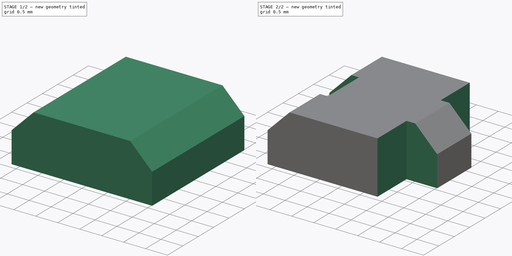
[diagram: build sequence overview — one tinted view per stage of 2, left to right]
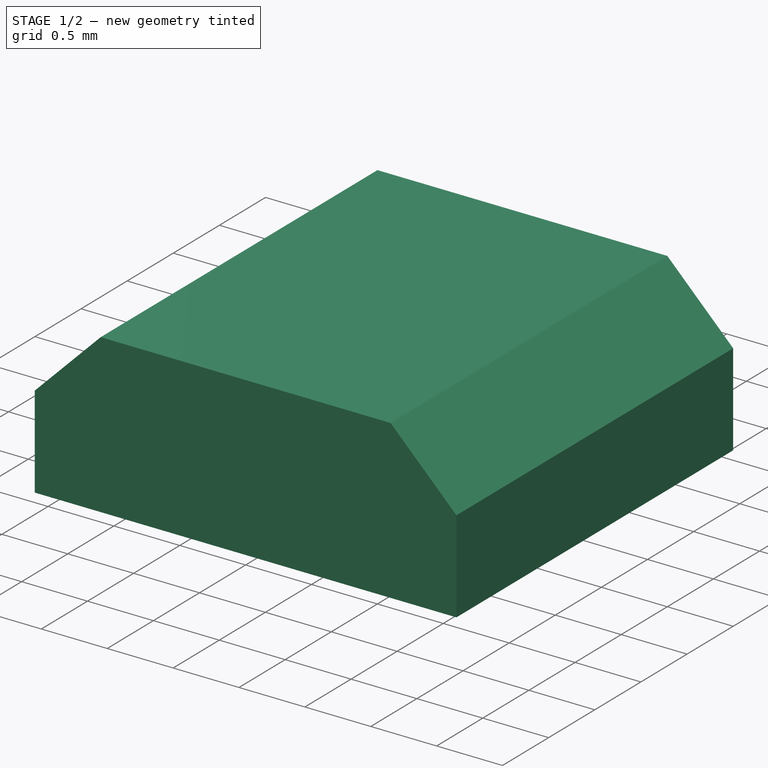
[diagram: stage 1 of 2 — iso view after this stage's code; geometry added in this stage tinted green]
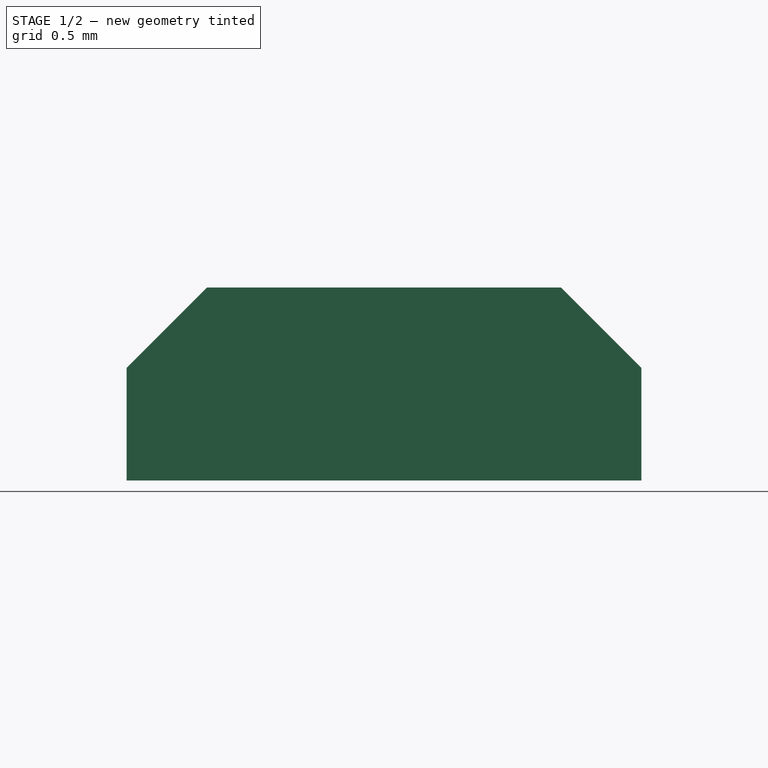
[diagram: stage 1 of 2 — front view after this stage's code; geometry added in this stage tinted green]
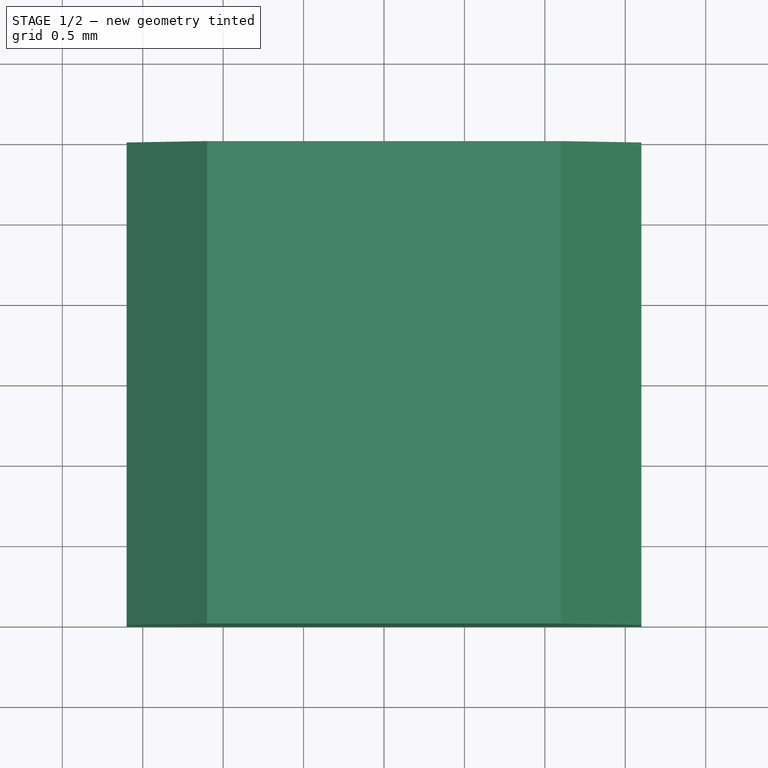
[diagram: stage 1 of 2 — top view after this stage's code; geometry added in this stage tinted green]
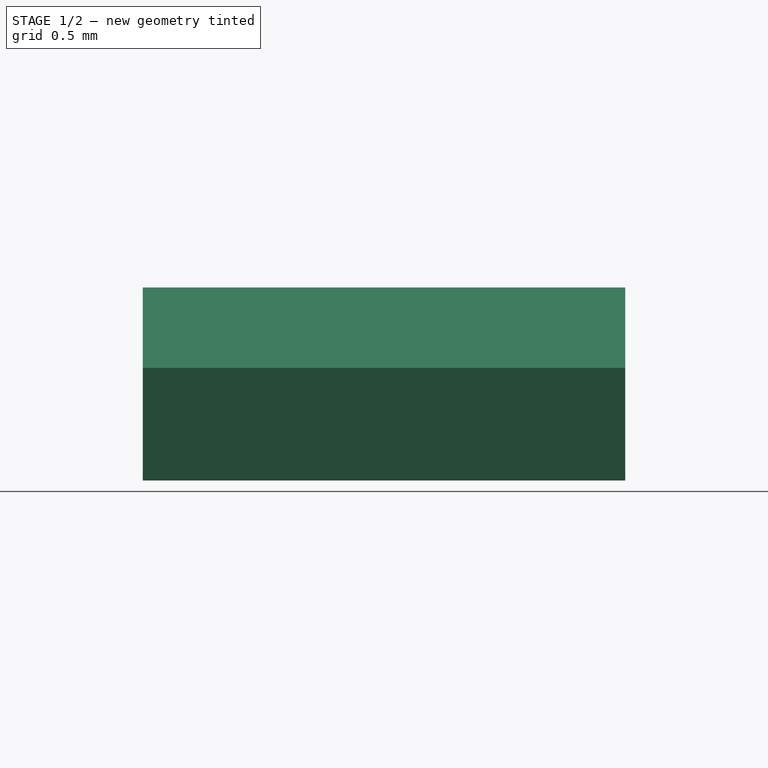
[diagram: stage 1 of 2 — right view after this stage's code; geometry added in this stage tinted green]
FCSTD DOCUMENT  (FreeCAD 0.18R15969 (Git))
Label: Sot23-big
License: All rights reserved
LicenseURL: http://en.wikipedia.org/wiki/All_rights_reserved
objects: Sketcher::SketchObject×2, PartDesign::Pad×1, PartDesign::Chamfer×1, PartDesign::Pocket×1, PartDesign::Body×1
note: 8 computed .brp shape members not serialized (recipe doc carries the construction recipe); baked Part::Feature solids carry a one-line shape summary decoded from their .brp

FEATURE [Sketcher::SketchObject] Sketch
  MapMode = 5
  Support = -> [XY_Plane]
  sketch-geometry (7):
    g0: LineSegment StartX=-1.6 StartY=-1.5 StartZ=0 EndX=1.6 EndY=-1.5 EndZ=0
    g1: LineSegment StartX=1.6 StartY=-1.5 StartZ=0 EndX=1.6 EndY=1.5 EndZ=0
    g2: LineSegment StartX=1.6 StartY=1.5 StartZ=0 EndX=-1.6 EndY=1.5 EndZ=0
    g3: LineSegment StartX=-1.6 StartY=1.5 StartZ=0 EndX=-1.6 EndY=-1.5 EndZ=0
    g4: LineSegment [constr] StartX=-1.6 StartY=1.5 StartZ=0 EndX=0 EndY=0 EndZ=0
    g5: LineSegment [constr] StartX=0 StartY=0 StartZ=0 EndX=1.6 EndY=1.5 EndZ=0
    g6: LineSegment [constr] StartX=0 StartY=0 StartZ=0 EndX=-1.6 EndY=-1.5 EndZ=0
  constraints (18):
    c: Coincident(g0,g1)
    c: Coincident(g1,g2)
    c: Coincident(g2,g3)
    c: Coincident(g3,g0)
    c: Horizontal(g0)
    c: Horizontal(g2)
    c: Vertical(g1)
    c: Vertical(g3)
    c: Coincident(g4,g2)
    c: Coincident(g4,g-1)
    c: Coincident(g5,g-1)
    c: Coincident(g5,g1)
    c: Coincident(g6,g-1)
    c: Coincident(g6,g0)
    c: Equal(g5,g4)
    c: Equal(g4,g6)
    c: DistanceX(g2,g2) = 3.2
    c: DistanceY(g3,g3) = 3
FEATURE [PartDesign::Pad] Pad
  Length = 1.2
  Length2 = 100
  Profile = -> Sketch
  Refine = true
  Type = 0
FEATURE [PartDesign::Chamfer] Chamfer
  Base = -> Pad [Edge12,Edge7]
  BaseFeature = -> Pad
  Size = 0.5
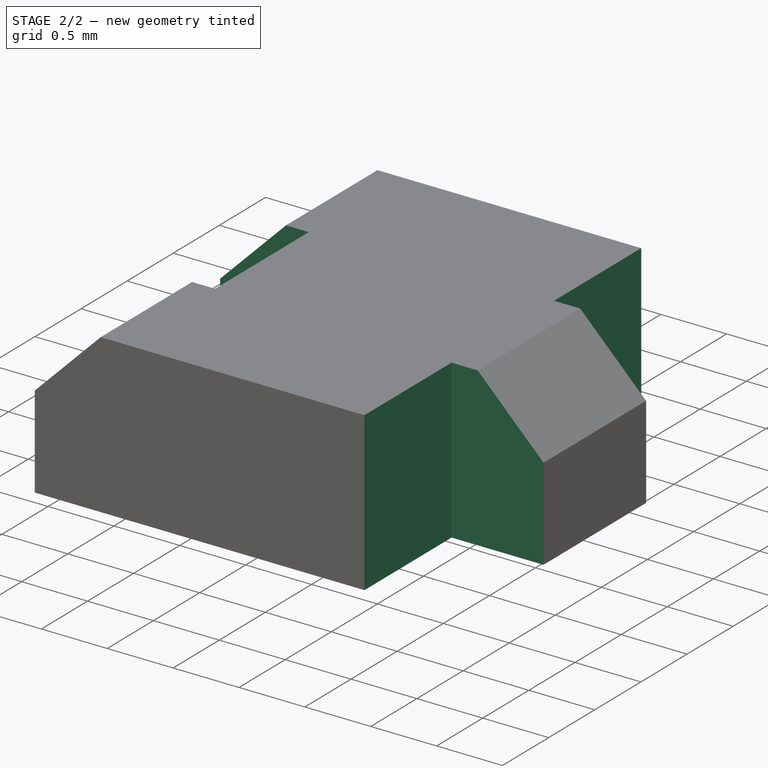
[diagram: stage 2 of 2 — iso view after this stage's code; geometry added in this stage tinted green]
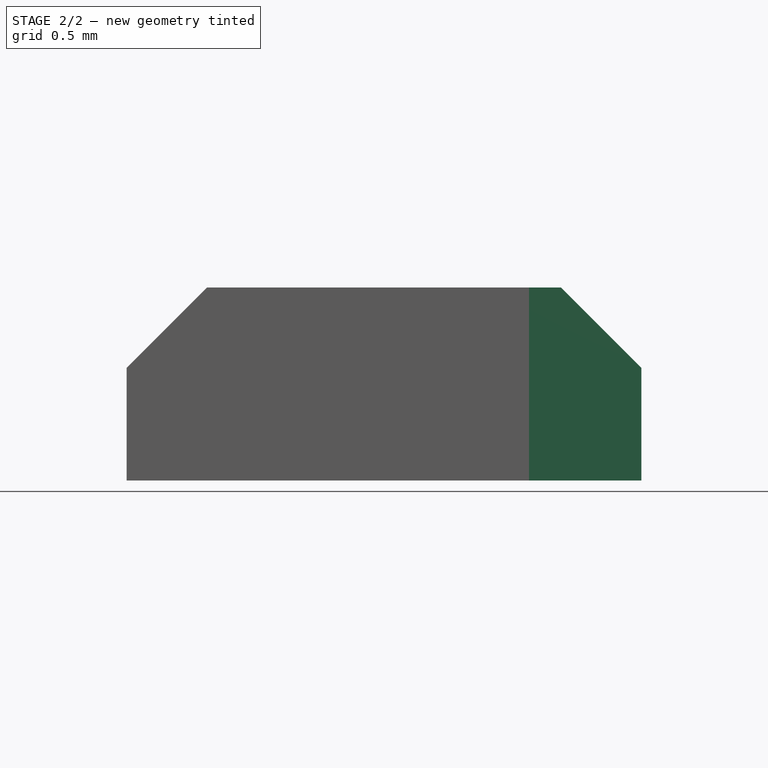
[diagram: stage 2 of 2 — front view after this stage's code; geometry added in this stage tinted green]
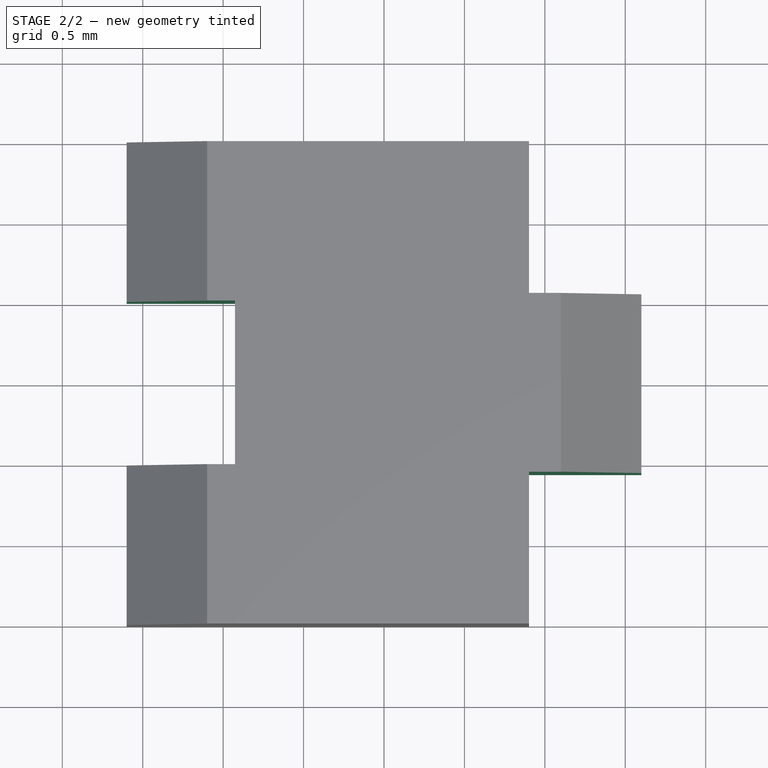
[diagram: stage 2 of 2 — top view after this stage's code; geometry added in this stage tinted green]
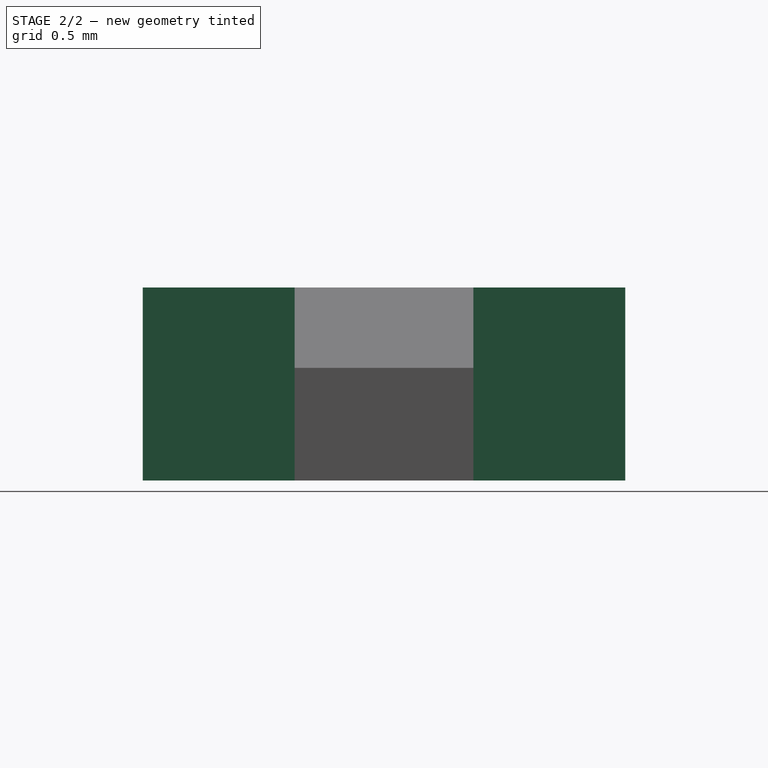
[diagram: stage 2 of 2 — right view after this stage's code; geometry added in this stage tinted green]
FEATURE [Sketcher::SketchObject] Sketch001
  MapMode = 5
  Placement = pos=(0,0,1.2) rot=(0,0,1;0rad)
  Support = -> [Chamfer]
  sketch-geometry (23):
    g0: LineSegment StartX=-2.77743 StartY=0.5085 StartZ=0 EndX=-0.926537 EndY=0.5085 EndZ=0
    g1: LineSegment StartX=-0.926537 StartY=0.5085 StartZ=0 EndX=-0.926537 EndY=-0.5085 EndZ=0
    g2: LineSegment StartX=-0.926537 StartY=-0.5085 StartZ=0 EndX=-2.77743 EndY=-0.5085 EndZ=0
    g3: LineSegment StartX=-2.77743 StartY=-0.5085 StartZ=0 EndX=-2.77743 EndY=0.5085 EndZ=0
    g4: LineSegment [constr] StartX=-2.77743 StartY=0.5085 StartZ=0 EndX=-1.85198 EndY=0 EndZ=0
    g5: LineSegment [constr] StartX=-0.926537 StartY=0.5085 StartZ=0 EndX=-1.85198 EndY=0 EndZ=0
    g6: LineSegment [constr] StartX=-2.77743 StartY=-0.5085 StartZ=0 EndX=-1.85198 EndY=0 EndZ=0
    g7: LineSegment StartX=0.901831 StartY=1.71105 StartZ=0 EndX=2.61133 EndY=1.71105 EndZ=0
    g8: LineSegment StartX=2.61133 StartY=1.71105 StartZ=0 EndX=2.61133 EndY=0.555831 EndZ=0
    g9: LineSegment StartX=2.61133 StartY=0.555831 StartZ=0 EndX=0.901831 EndY=0.555831 EndZ=0
    g10: LineSegment StartX=0.901831 StartY=0.555831 StartZ=0 EndX=0.901831 EndY=1.71105 EndZ=0
    g11: LineSegment StartX=0.901831 StartY=-1.71105 StartZ=0 EndX=2.61133 EndY=-1.71105 EndZ=0
    g12: LineSegment StartX=2.61133 StartY=-1.71105 StartZ=0 EndX=2.61133 EndY=-0.555831 EndZ=0
    g13: LineSegment StartX=2.61133 StartY=-0.555831 StartZ=0 EndX=0.901831 EndY=-0.555831 EndZ=0
    g14: LineSegment StartX=0.901831 StartY=-0.555831 StartZ=0 EndX=0.901831 EndY=-1.71105 EndZ=0
    g15: LineSegment [constr] StartX=0.901831 StartY=-0.555831 StartZ=0 EndX=1.75658 EndY=-1.13344 EndZ=0
    g16: LineSegment [constr] StartX=1.75658 StartY=-1.13344 StartZ=0 EndX=0.901831 EndY=-1.71105 EndZ=0
    g17: LineSegment [constr] StartX=1.75658 StartY=-1.13344 StartZ=0 EndX=2.61133 EndY=-0.555831 EndZ=0
    g18: LineSegment [constr] StartX=1.75658 StartY=-1.13344 StartZ=0 EndX=1.75658 EndY=0 EndZ=0
    g19: LineSegment [constr] StartX=1.75658 StartY=0 StartZ=0 EndX=1.75658 EndY=1.13344 EndZ=0
    g20: LineSegment [constr] StartX=2.61133 StartY=1.71105 StartZ=0 EndX=1.75658 EndY=1.13344 EndZ=0
    g21: LineSegment [constr] StartX=1.75658 StartY=1.13344 StartZ=0 EndX=0.901831 EndY=1.71105 EndZ=0
    g22: LineSegment [constr] StartX=0.901831 StartY=0.555831 StartZ=0 EndX=1.75658 EndY=1.13344 EndZ=0
  constraints (55):
    c: Coincident(g0,g1)
    c: Coincident(g1,g2)
    c: Coincident(g2,g3)
    c: Coincident(g3,g0)
    c: Horizontal(g0)
    c: Horizontal(g2)
    c: Vertical(g1)
    c: Vertical(g3)
    c: Coincident(g4,g0)
    c: PointOnObject(g4,g-1)
    c: Coincident(g5,g0)
    c: Coincident(g5,g4)
    c: Coincident(g6,g2)
    c: Coincident(g6,g4)
    c: Equal(g4,g6)
    c: Equal(g6,g5)
    c: Coincident(g7,g8)
    c: Coincident(g8,g9)
    c: Coincident(g9,g10)
    c: Coincident(g10,g7)
    c: Horizontal(g7)
    c: Horizontal(g9)
    c: Vertical(g8)
    c: Vertical(g10)
    c: Coincident(g11,g12)
    c: Coincident(g12,g13)
    c: Coincident(g13,g14)
    c: Coincident(g14,g11)
    c: Horizontal(g11)
    c: Horizontal(g13)
    c: Vertical(g12)
    c: Vertical(g14)
    c: Coincident(g15,g13)
    c: Coincident(g16,g15)
    c: Coincident(g16,g11)
    c: Coincident(g17,g15)
    c: Coincident(g17,g12)
    c: Coincident(g18,g15)
    c: PointOnObject(g18,g-1)
    c: Vertical(g18)
    c: Coincident(g19,g18)
    c: Coincident(g20,g7)
    c: Coincident(g20,g19)
    c: Coincident(g21,g19)
    c: Coincident(g21,g7)
    c: Coincident(g22,g9)
    c: Coincident(g22,g19)
    c: Vertical(g19)
    c: Equal(g22,g21)
    c: Equal(g21,g20)
    c: Equal(g20,g15)
    c: Equal(g15,g16)
    c: Equal(g16,g17)
    c: Equal(g13,g7)
    c: Equal(g18,g19)
FEATURE [PartDesign::Pocket] Pocket
  BaseFeature = -> Chamfer
  Length = 5
  Length2 = 100
  Profile = -> Sketch001
  Refine = true
  Type = 0
FEATURE [PartDesign::Body] Body  label="Sot23-big"
  Group = -> [Sketch,Pad,Chamfer,Sketch001,Pocket]
  Origin = -> Origin
  Placement = pos=(0,0,0) rot=(0,0,1;1.5708rad)
  Tip = -> Pocket
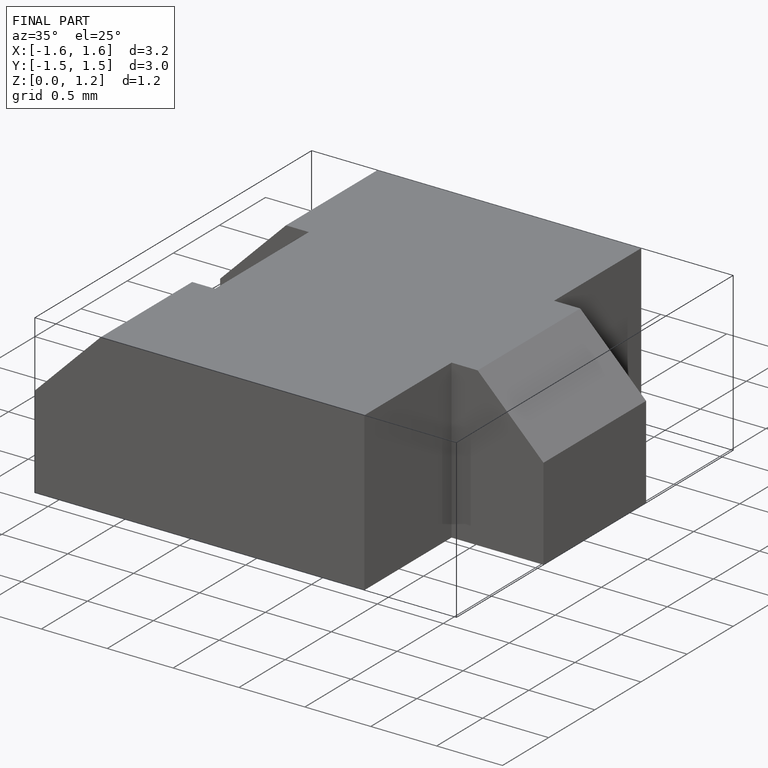
[diagram: finished part — iso view with bounding-box wireframe]
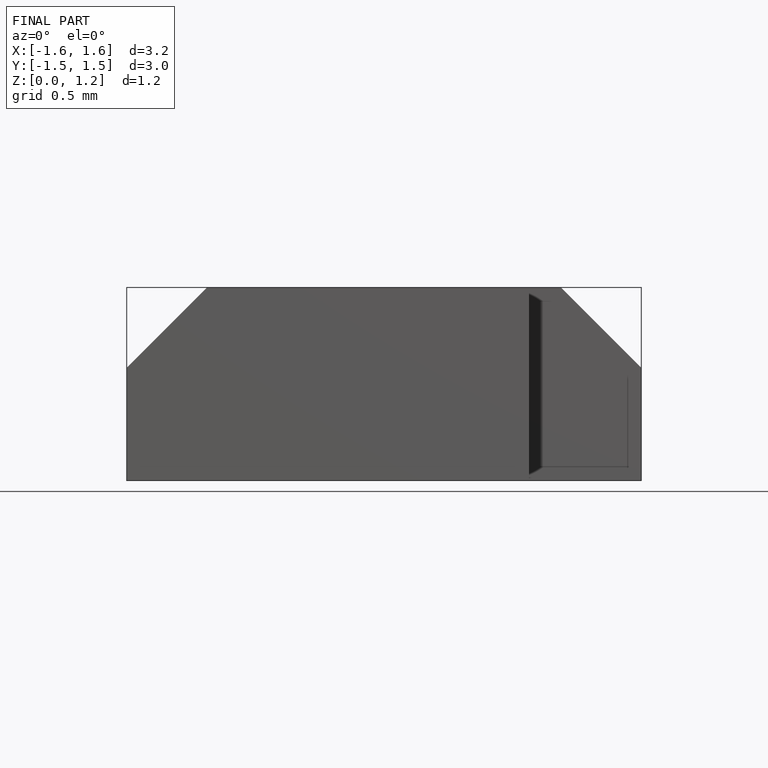
[diagram: finished part — front view with bounding-box wireframe]
